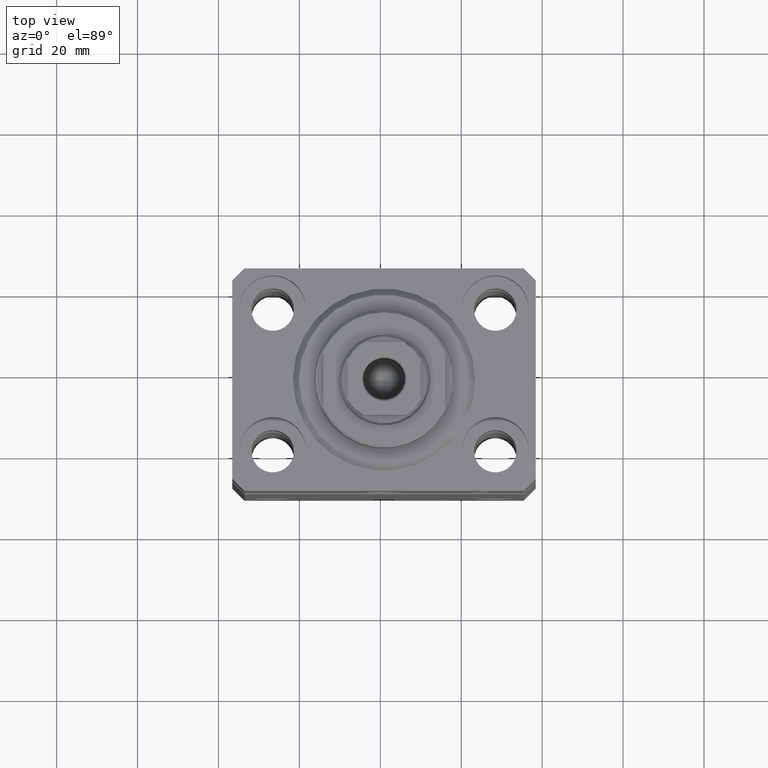
[diagram: clean part render]
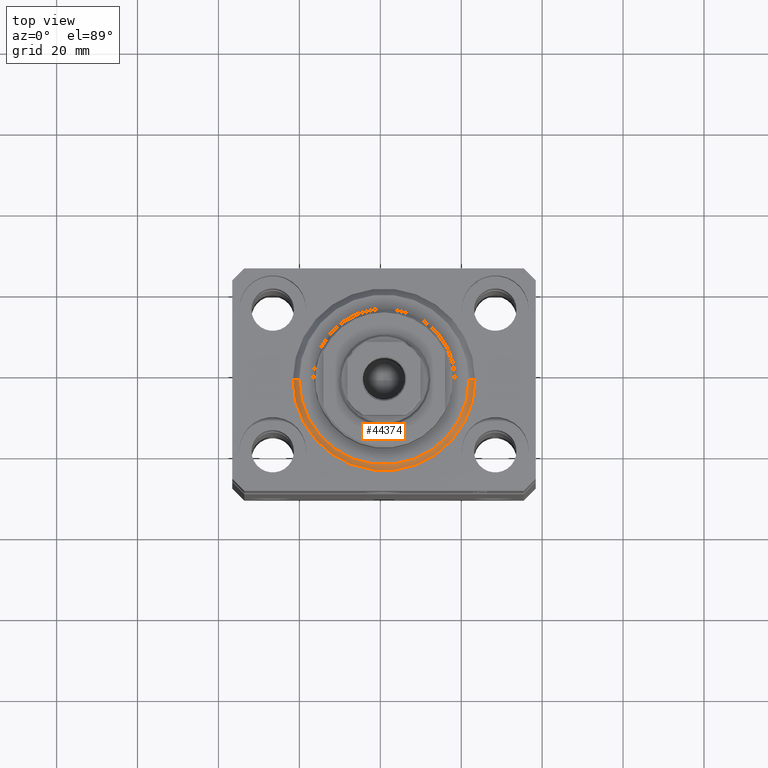
[diagram: same view with one face highlighted and labeled with its STEP entity id]
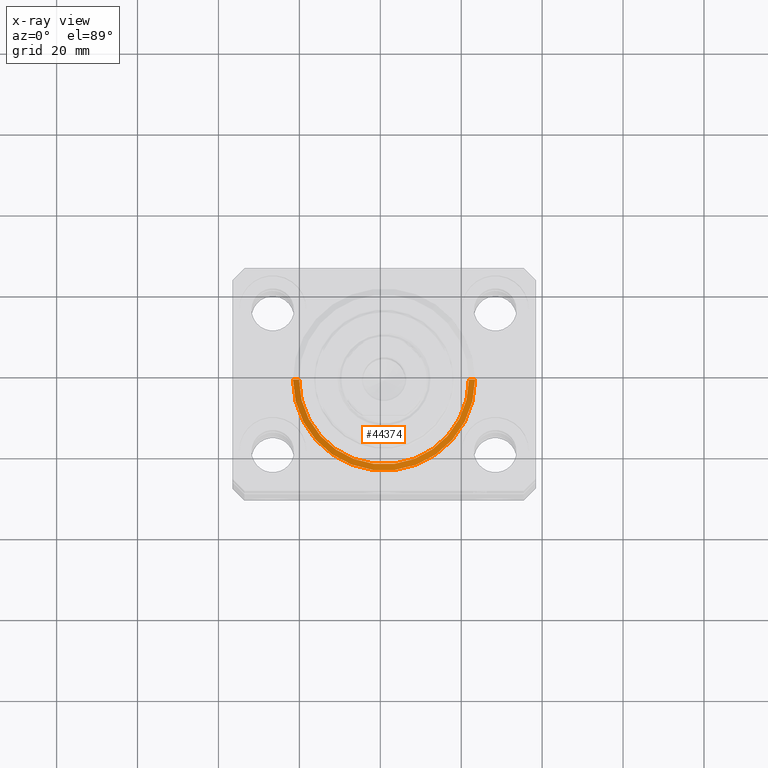
[diagram: x-ray of the same camera — body ghosted, the highlighted face saturated]
A machine part, top view. The second image highlights one B-rep face of the part: STEP entity #44374.
The next image is the same camera in x-ray: the body ghosted, the highlighted face saturated — about 0% of this face is hidden behind the body in this view.
In plain terms, the highlighted conical surface has half-angle 45 deg.
Its self-contained STEP definition (entity closure, byte-faithful):
#103 = VERTEX_POINT ( 'NONE', #26863 ) ;
#113 = EDGE_CURVE ( 'NONE', #1671, #26767, #17387, .T. ) ;
#753 = DIRECTION ( 'NONE',  ( -0.000000000000000000, -0.000000000000000000, -1.000000000000000000 ) ) ;
#1411 = CARTESIAN_POINT ( 'NONE',  ( 22.50000000000000355, 0.000000000000000000, 1.500000000000001332 ) ) ;
#1671 = VERTEX_POINT ( 'NONE', #17204 ) ;
#3671 = EDGE_CURVE ( 'NONE', #103, #32916, #4769, .T. ) ;
#4769 = LINE ( 'NONE', #1411, #17060 ) ;
#5226 = CONICAL_SURFACE ( 'NONE', #12466, 22.50000000000000355, 0.7853981633974517207 ) ;
#7135 = ORIENTED_EDGE ( 'NONE', *, *, #113, .F. ) ;
#7504 = DIRECTION ( 'NONE',  ( 1.000000000000000000, 0.000000000000000000, 0.000000000000000000 ) ) ;
#8010 = DIRECTION ( 'NONE',  ( -0.000000000000000000, -0.000000000000000000, 1.000000000000000000 ) ) ;
#11126 = EDGE_CURVE ( 'NONE', #26767, #32916, #15724, .T. ) ;
#12292 = CARTESIAN_POINT ( 'NONE',  ( 0.000000000000000000, 0.000000000000000000, 1.500000000000001332 ) ) ;
#12466 = AXIS2_PLACEMENT_3D ( 'NONE', #12292, #12736, #44080 ) ;
#12736 = DIRECTION ( 'NONE',  ( -0.000000000000000000, -0.000000000000000000, 1.000000000000000000 ) ) ;
#14394 = ORIENTED_EDGE ( 'NONE', *, *, #11126, .F. ) ;
#15689 = CIRCLE ( 'NONE', #30070, 20.99999999999998934 ) ;
#15724 = CIRCLE ( 'NONE', #31584, 22.50000000000000355 ) ;
#17060 = VECTOR ( 'NONE', #21925, 1000.000000000000114 ) ;
#17204 = CARTESIAN_POINT ( 'NONE',  ( -20.99999999999998934, 2.663606788145492628E-15, 0.000000000000000000 ) ) ;
#17387 = LINE ( 'NONE', #27308, #36428 ) ;
#21925 = DIRECTION ( 'NONE',  ( 0.7071067811865500152, 0.000000000000000000, 0.7071067811865451302 ) ) ;
#24116 = CARTESIAN_POINT ( 'NONE',  ( 22.50000000000000355, 2.755455298081545172E-15, 1.500000000000001332 ) ) ;
#26767 = VERTEX_POINT ( 'NONE', #26820 ) ;
#26820 = CARTESIAN_POINT ( 'NONE',  ( -22.50000000000000355, 0.000000000000000000, 1.500000000000001332 ) ) ;
#26863 = CARTESIAN_POINT ( 'NONE',  ( 20.99999999999998934, 0.000000000000000000, 0.000000000000000000 ) ) ;
#27308 = CARTESIAN_POINT ( 'NONE',  ( -22.50000000000000355, 2.755455298081545172E-15, 1.500000000000001332 ) ) ;
#27354 = EDGE_CURVE ( 'NONE', #103, #1671, #15689, .T. ) ;
#27874 = ORIENTED_EDGE ( 'NONE', *, *, #27354, .F. ) ;
#29207 = CARTESIAN_POINT ( 'NONE',  ( 0.000000000000000000, 0.000000000000000000, 1.500000000000001332 ) ) ;
#30070 = AXIS2_PLACEMENT_3D ( 'NONE', #38872, #753, #7504 ) ;
#31141 = DIRECTION ( 'NONE',  ( -0.7071067811865500152, 8.659560562354963673E-17, 0.7071067811865451302 ) ) ;
#31584 = AXIS2_PLACEMENT_3D ( 'NONE', #29207, #8010, #42541 ) ;
#32916 = VERTEX_POINT ( 'NONE', #24116 ) ;
#36428 = VECTOR ( 'NONE', #31141, 1000.000000000000114 ) ;
#38872 = CARTESIAN_POINT ( 'NONE',  ( 0.000000000000000000, 0.000000000000000000, 0.000000000000000000 ) ) ;
#42361 = EDGE_LOOP ( 'NONE', ( #7135, #27874, #42466, #14394 ) ) ;
#42466 = ORIENTED_EDGE ( 'NONE', *, *, #3671, .T. ) ;
#42541 = DIRECTION ( 'NONE',  ( 1.000000000000000000, 0.000000000000000000, 0.000000000000000000 ) ) ;
#43190 = FACE_OUTER_BOUND ( 'NONE', #42361, .T. ) ;
#44080 = DIRECTION ( 'NONE',  ( 1.000000000000000000, 0.000000000000000000, 0.000000000000000000 ) ) ;
#44374 = ADVANCED_FACE ( 'NONE', ( #43190 ), #5226, .T. ) ;